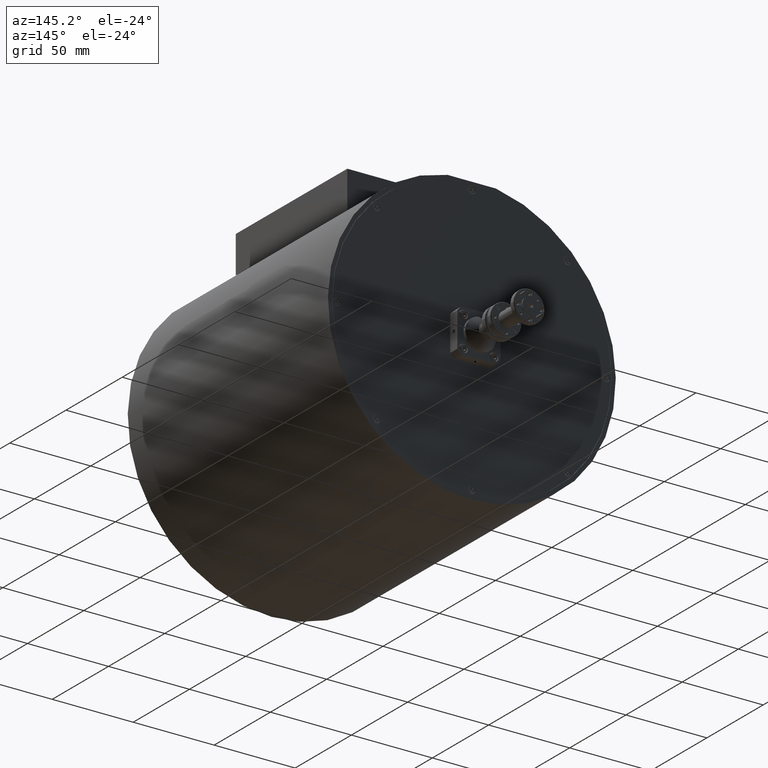
[diagram: clean part render]
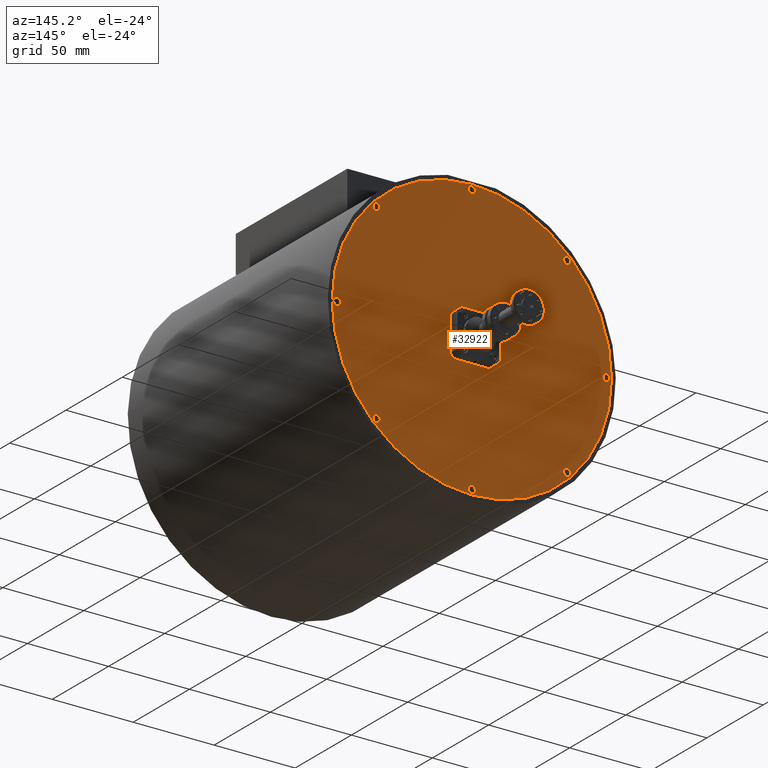
[diagram: same view with one face highlighted and labeled with its STEP entity id]
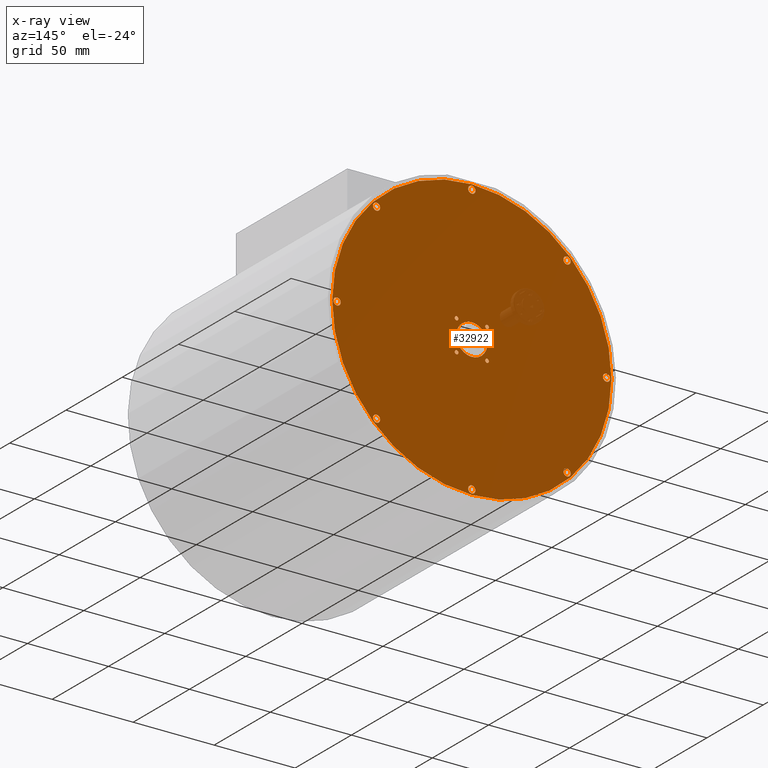
[diagram: x-ray of the same camera — body ghosted, the highlighted face saturated]
A machine part, auxiliary view. The second image highlights one B-rep face of the part: STEP entity #32922.
The next image is the same camera in x-ray: the body ghosted, the highlighted face saturated — about 2% of this face is hidden behind the body in this view.
In plain terms, the highlighted planar face has unit normal (0, -1, 0).
Its self-contained STEP definition (entity closure, byte-faithful):
#92 = EDGE_CURVE ( 'NONE', #32298, #22363, #33457, .T. ) ;
#396 = EDGE_LOOP ( 'NONE', ( #39089, #36106 ) ) ;
#530 = VERTEX_POINT ( 'NONE', #22983 ) ;
#571 = CARTESIAN_POINT ( 'NONE',  ( 1.766110170381784084, 4.544377155374180965, 0.7368484988796818458 ) ) ;
#746 = CIRCLE ( 'NONE', #27181, 0.08750000000000000833 ) ;
#836 = ORIENTED_EDGE ( 'NONE', *, *, #27772, .F. ) ;
#848 = CIRCLE ( 'NONE', #27978, 0.04449999999999997014 ) ;
#864 = ORIENTED_EDGE ( 'NONE', *, *, #34835, .F. ) ;
#1062 = EDGE_CURVE ( 'NONE', #41941, #23240, #19148, .T. ) ;
#1152 = AXIS2_PLACEMENT_3D ( 'NONE', #16897, #29875, #19798 ) ;
#1375 = EDGE_CURVE ( 'NONE', #12288, #530, #19879, .T. ) ;
#1392 = DIRECTION ( 'NONE',  ( 1.432160885642243375E-17, -1.000000000000000000, 5.753011097043310600E-17 ) ) ;
#1716 = ORIENTED_EDGE ( 'NONE', *, *, #40289, .F. ) ;
#1743 = FACE_BOUND ( 'NONE', #37231, .T. ) ;
#1960 = FACE_BOUND ( 'NONE', #33060, .T. ) ;
#2067 = CIRCLE ( 'NONE', #35623, 0.08750000000000011935 ) ;
#2194 = FACE_BOUND ( 'NONE', #23297, .T. ) ;
#2312 = VERTEX_POINT ( 'NONE', #12146 ) ;
#2569 = DIRECTION ( 'NONE',  ( 0.7071067811865475727, 0.0000000000000000000, -0.7071067811865475727 ) ) ;
#2608 = DIRECTION ( 'NONE',  ( 0.7071067811865491270, 0.0000000000000000000, -0.7071067811865460184 ) ) ;
#2610 = AXIS2_PLACEMENT_3D ( 'NONE', #41731, #21604, #4182 ) ;
#2709 = CARTESIAN_POINT ( 'NONE',  ( 0.7450130354139049560, 4.544377155374180965, -1.517054366152438716 ) ) ;
#2897 = EDGE_CURVE ( 'NONE', #19236, #42181, #8564, .T. ) ;
#2951 = AXIS2_PLACEMENT_3D ( 'NONE', #6774, #6996, #34037 ) ;
#3060 = CARTESIAN_POINT ( 'NONE',  ( -1.570761672972039280, 4.544377155374180965, -2.476279657766495834 ) ) ;
#3275 = ORIENTED_EDGE ( 'NONE', *, *, #41382, .F. ) ;
#3349 = ORIENTED_EDGE ( 'NONE', *, *, #92, .T. ) ;
#3637 = EDGE_CURVE ( 'NONE', #10530, #17960, #39335, .T. ) ;
#3735 = ORIENTED_EDGE ( 'NONE', *, *, #22485, .F. ) ;
#3861 = CARTESIAN_POINT ( 'NONE',  ( -1.941992733094976886, 4.544377155374180965, 1.169951402356441905 ) ) ;
#4150 = CIRCLE ( 'NONE', #5582, 0.08750000000000021649 ) ;
#4182 = DIRECTION ( 'NONE',  ( 0.7071067811865483499, 0.0000000000000000000, -0.7071067811865467956 ) ) ;
#4295 = DIRECTION ( 'NONE',  ( -0.7071067811865479058, 0.0000000000000000000, 0.7071067811865472397 ) ) ;
#4600 = AXIS2_PLACEMENT_3D ( 'NONE', #5323, #29020, #12008 ) ;
#5019 = DIRECTION ( 'NONE',  ( -1.432160885642243375E-17, 1.000000000000000000, -5.753011097043310600E-17 ) ) ;
#5323 = CARTESIAN_POINT ( 'NONE',  ( -1.941992733094976886, 4.544377155374180965, 1.169951402356441905 ) ) ;
#5582 = AXIS2_PLACEMENT_3D ( 'NONE', #28450, #8091, #18374 ) ;
#5771 = ORIENTED_EDGE ( 'NONE', *, *, #38360, .F. ) ;
#5858 = CARTESIAN_POINT ( 'NONE',  ( -1.199530612849101674, 4.544377155374180965, 0.4274892821105671370 ) ) ;
#5870 = AXIS2_PLACEMENT_3D ( 'NONE', #10584, #11228, #24225 ) ;
#5941 = CARTESIAN_POINT ( 'NONE',  ( -3.886536381357983405, 4.544377155374180965, 3.114495050619447536 ) ) ;
#5945 = DIRECTION ( 'NONE',  ( -1.432160885642243375E-17, 1.000000000000000000, -5.753011097043310600E-17 ) ) ;
#6259 = VERTEX_POINT ( 'NONE', #10259 ) ;
#6684 = CARTESIAN_POINT ( 'NONE',  ( -1.973458984857778153, 4.544377155374180965, 1.201417654119243394 ) ) ;
#6774 = CARTESIAN_POINT ( 'NONE',  ( -3.886536381357982073, 4.544377155374180965, -1.517054366152439160 ) ) ;
#6805 = CARTESIAN_POINT ( 'NONE',  ( -1.168064361086300629, 4.544377155374180965, 1.138485150593640638 ) ) ;
#6843 = DIRECTION ( 'NONE',  ( -1.432160885642243375E-17, 1.000000000000000000, -5.753011097043310600E-17 ) ) ;
#6865 = AXIS2_PLACEMENT_3D ( 'NONE', #16015, #12643, #26324 ) ;
#6996 = DIRECTION ( 'NONE',  ( -1.432160885642243375E-17, 1.000000000000000000, -5.753011097043310600E-17 ) ) ;
#7031 = AXIS2_PLACEMENT_3D ( 'NONE', #7562, #17862, #37753 ) ;
#7085 = AXIS2_PLACEMENT_3D ( 'NONE', #13399, #27715, #17218 ) ;
#7264 = CARTESIAN_POINT ( 'NONE',  ( -1.570761672972039280, 4.544377155374180965, -2.476279657766495834 ) ) ;
#7373 = EDGE_CURVE ( 'NONE', #22273, #32076, #42065, .T. ) ;
#7562 = CARTESIAN_POINT ( 'NONE',  ( 0.7450130354139038458, 4.544377155374180965, 3.114495050619447980 ) ) ;
#7645 = CARTESIAN_POINT ( 'NONE',  ( 0.8068848787677267431, 4.544377155374180965, 3.052623207265625194 ) ) ;
#7720 = CARTESIAN_POINT ( 'NONE',  ( -3.824664538004160619, 4.544377155374180965, 3.052623207265624750 ) ) ;
#8013 = ORIENTED_EDGE ( 'NONE', *, *, #13438, .F. ) ;
#8091 = DIRECTION ( 'NONE',  ( -1.432160885642243375E-17, 1.000000000000000000, -5.753011097043310600E-17 ) ) ;
#8430 = CIRCLE ( 'NONE', #33319, 0.04449999999999997014 ) ;
#8436 = CIRCLE ( 'NONE', #7031, 0.08749999999999991118 ) ;
#8451 = FACE_BOUND ( 'NONE', #24639, .T. ) ;
#8564 = CIRCLE ( 'NONE', #27881, 0.08749999999999991118 ) ;
#8684 = FACE_BOUND ( 'NONE', #396, .T. ) ;
#9285 = DIRECTION ( 'NONE',  ( -0.7071067811865477948, 0.0000000000000000000, 0.7071067811865473507 ) ) ;
#9343 = EDGE_CURVE ( 'NONE', #11341, #11160, #33639, .T. ) ;
#9637 = ORIENTED_EDGE ( 'NONE', *, *, #7373, .T. ) ;
#9687 = AXIS2_PLACEMENT_3D ( 'NONE', #3060, #6843, #2608 ) ;
#9796 = EDGE_CURVE ( 'NONE', #18478, #40719, #8436, .T. ) ;
#9830 = CARTESIAN_POINT ( 'NONE',  ( -4.907633516325862644, 4.544377155374180965, 0.8605921855873270854 ) ) ;
#10259 = CARTESIAN_POINT ( 'NONE',  ( -1.230996864611903163, 4.544377155374180965, 0.4589555338733684597 ) ) ;
#10530 = VERTEX_POINT ( 'NONE', #27178 ) ;
#10584 = CARTESIAN_POINT ( 'NONE',  ( -4.845761672972040301, 4.544377155374180965, 0.7987203422335041880 ) ) ;
#10742 = EDGE_CURVE ( 'NONE', #530, #12288, #746, .T. ) ;
#11139 = DIRECTION ( 'NONE',  ( 0.7071067811865491270, 0.0000000000000000000, -0.7071067811865460184 ) ) ;
#11160 = VERTEX_POINT ( 'NONE', #16717 ) ;
#11228 = DIRECTION ( 'NONE',  ( -1.432160885642243375E-17, 1.000000000000000000, -5.753011097043310600E-17 ) ) ;
#11341 = VERTEX_POINT ( 'NONE', #27900 ) ;
#11375 = EDGE_CURVE ( 'NONE', #40719, #18478, #34730, .T. ) ;
#11442 = EDGE_LOOP ( 'NONE', ( #836, #38924 ) ) ;
#11698 = EDGE_CURVE ( 'NONE', #35911, #21248, #33985, .T. ) ;
#11864 = CARTESIAN_POINT ( 'NONE',  ( -4.783889829618217071, 4.544377155374180965, 0.7368484988796812907 ) ) ;
#12008 = DIRECTION ( 'NONE',  ( -0.7071067811865475727, 0.0000000000000000000, 0.7071067811865475727 ) ) ;
#12146 = CARTESIAN_POINT ( 'NONE',  ( -1.910526481332175397, 4.544377155374180965, 1.138485150593640638 ) ) ;
#12204 = CARTESIAN_POINT ( 'NONE',  ( -4.845761672972040301, 4.544377155374180965, 0.7987203422335041880 ) ) ;
#12288 = VERTEX_POINT ( 'NONE', #36017 ) ;
#12437 = EDGE_CURVE ( 'NONE', #6259, #39704, #38552, .T. ) ;
#12643 = DIRECTION ( 'NONE',  ( 1.432160885642243375E-17, -1.000000000000000000, 5.753011097043310600E-17 ) ) ;
#12678 = ORIENTED_EDGE ( 'NONE', *, *, #27865, .T. ) ;
#12727 = AXIS2_PLACEMENT_3D ( 'NONE', #28676, #1392, #4295 ) ;
#13195 = DIRECTION ( 'NONE',  ( 1.432160885642243375E-17, -1.000000000000000000, 5.753011097043310600E-17 ) ) ;
#13327 = AXIS2_PLACEMENT_3D ( 'NONE', #2709, #15903, #29982 ) ;
#13399 = CARTESIAN_POINT ( 'NONE',  ( -1.199530612849101896, 4.544377155374180965, 1.169951402356441905 ) ) ;
#13438 = EDGE_CURVE ( 'NONE', #11160, #11341, #19895, .T. ) ;
#13703 = CIRCLE ( 'NONE', #22990, 0.3775000000000002243 ) ;
#13749 = DIRECTION ( 'NONE',  ( -1.432160885642243375E-17, 1.000000000000000000, -5.753011097043310600E-17 ) ) ;
#14713 = CIRCLE ( 'NONE', #6865, 0.04450000000000006034 ) ;
#14887 = AXIS2_PLACEMENT_3D ( 'NONE', #23036, #40225, #19898 ) ;
#14902 = CARTESIAN_POINT ( 'NONE',  ( -1.910526481332175397, 4.544377155374180965, 0.3960230303477657032 ) ) ;
#14962 = CARTESIAN_POINT ( 'NONE',  ( -1.837694482869961288, 4.544377155374180965, 1.065653152131426085 ) ) ;
#15156 = CIRCLE ( 'NONE', #5870, 0.08749999999999991118 ) ;
#15174 = FACE_BOUND ( 'NONE', #11442, .T. ) ;
#15429 = CIRCLE ( 'NONE', #40401, 0.08749999999999981404 ) ;
#15433 = VERTEX_POINT ( 'NONE', #18734 ) ;
#15538 = CARTESIAN_POINT ( 'NONE',  ( -1.973458984857778153, 4.544377155374180965, 0.4589555338733684042 ) ) ;
#15599 = FACE_OUTER_BOUND ( 'NONE', #15714, .T. ) ;
#15658 = ORIENTED_EDGE ( 'NONE', *, *, #3637, .F. ) ;
#15714 = EDGE_LOOP ( 'NONE', ( #8013, #35770 ) ) ;
#15747 = VERTEX_POINT ( 'NONE', #7720 ) ;
#15903 = DIRECTION ( 'NONE',  ( -1.432160885642243375E-17, 1.000000000000000000, -5.753011097043310600E-17 ) ) ;
#16015 = CARTESIAN_POINT ( 'NONE',  ( -1.199530612849101674, 4.544377155374180965, 0.4274892821105671370 ) ) ;
#16145 = CIRCLE ( 'NONE', #9687, 0.08750000000000000833 ) ;
#16207 = CARTESIAN_POINT ( 'NONE',  ( 1.704238327027961075, 4.544377155374180965, 0.7987203422335047431 ) ) ;
#16359 = CARTESIAN_POINT ( 'NONE',  ( 0.6831411920600818366, 4.544377155374180965, -1.455182522798615485 ) ) ;
#16522 = ORIENTED_EDGE ( 'NONE', *, *, #24804, .T. ) ;
#16616 = ORIENTED_EDGE ( 'NONE', *, *, #12437, .T. ) ;
#16717 = CARTESIAN_POINT ( 'NONE',  ( 0.8298658491562903583, 4.544377155374180965, -1.601907179894824118 ) ) ;
#16836 = ORIENTED_EDGE ( 'NONE', *, *, #9796, .F. ) ;
#16897 = CARTESIAN_POINT ( 'NONE',  ( -3.886536381357983405, 4.544377155374180965, 3.114495050619447536 ) ) ;
#17121 = EDGE_CURVE ( 'NONE', #42651, #15747, #15429, .T. ) ;
#17214 = CARTESIAN_POINT ( 'NONE',  ( -3.948408224711804859, 4.544377155374180965, -1.455182522798616374 ) ) ;
#17218 = DIRECTION ( 'NONE',  ( -0.7071067811865490160, 0.0000000000000000000, 0.7071067811865461294 ) ) ;
#17417 = CARTESIAN_POINT ( 'NONE',  ( 1.704238327027961075, 4.544377155374180965, 0.7987203422335047431 ) ) ;
#17862 = DIRECTION ( 'NONE',  ( -1.432160885642243375E-17, 1.000000000000000000, -5.753011097043310600E-17 ) ) ;
#17960 = VERTEX_POINT ( 'NONE', #17214 ) ;
#18374 = DIRECTION ( 'NONE',  ( 0.7071067811865474617, 0.0000000000000000000, -0.7071067811865474617 ) ) ;
#18478 = VERTEX_POINT ( 'NONE', #18645 ) ;
#18645 = CARTESIAN_POINT ( 'NONE',  ( 0.6831411920600808374, 4.544377155374180965, 3.176366893973270766 ) ) ;
#18734 = CARTESIAN_POINT ( 'NONE',  ( 0.8068848787677279644, 4.544377155374180965, -1.578926209506261724 ) ) ;
#18736 = FACE_BOUND ( 'NONE', #41333, .T. ) ;
#19148 = CIRCLE ( 'NONE', #12727, 0.3775000000000002243 ) ;
#19236 = VERTEX_POINT ( 'NONE', #9830 ) ;
#19798 = DIRECTION ( 'NONE',  ( 0.7071067811865475727, 0.0000000000000000000, -0.7071067811865475727 ) ) ;
#19879 = CIRCLE ( 'NONE', #24890, 0.08750000000000000833 ) ;
#19895 = CIRCLE ( 'NONE', #40601, 3.395000000000000462 ) ;
#19898 = DIRECTION ( 'NONE',  ( -0.7071067811865475727, 0.0000000000000000000, 0.7071067811865475727 ) ) ;
#20013 = ORIENTED_EDGE ( 'NONE', *, *, #26750, .T. ) ;
#21066 = DIRECTION ( 'NONE',  ( 1.432160885642243375E-17, -1.000000000000000000, 5.753011097043310600E-17 ) ) ;
#21248 = VERTEX_POINT ( 'NONE', #32463 ) ;
#21469 = ORIENTED_EDGE ( 'NONE', *, *, #10742, .F. ) ;
#21559 = DIRECTION ( 'NONE',  ( 0.7071067811865491270, 0.0000000000000000000, -0.7071067811865460184 ) ) ;
#21604 = DIRECTION ( 'NONE',  ( -1.432160885642243375E-17, 1.000000000000000000, -5.753011097043310600E-17 ) ) ;
#21716 = CARTESIAN_POINT ( 'NONE',  ( -1.303828863074117272, 4.544377155374180965, 0.5317875323355829575 ) ) ;
#21830 = DIRECTION ( 'NONE',  ( 0.7071067811865467956, 0.0000000000000000000, -0.7071067811865483499 ) ) ;
#21855 = FACE_BOUND ( 'NONE', #34709, .T. ) ;
#21871 = EDGE_LOOP ( 'NONE', ( #864, #32930 ) ) ;
#22238 = DIRECTION ( 'NONE',  ( -0.7071067811865477948, 0.0000000000000000000, 0.7071067811865473507 ) ) ;
#22273 = VERTEX_POINT ( 'NONE', #6805 ) ;
#22300 = CIRCLE ( 'NONE', #42914, 0.04450000000000006034 ) ;
#22363 = VERTEX_POINT ( 'NONE', #14902 ) ;
#22422 = CARTESIAN_POINT ( 'NONE',  ( -1.570761672972039280, 4.544377155374180965, 4.073720342233505320 ) ) ;
#22441 = CARTESIAN_POINT ( 'NONE',  ( -1.570761672972039280, 4.544377155374180965, 0.7987203422335045211 ) ) ;
#22485 = EDGE_CURVE ( 'NONE', #41284, #40191, #2067, .T. ) ;
#22501 = PLANE ( 'NONE',  #41713 ) ;
#22604 = DIRECTION ( 'NONE',  ( -0.7071067811865490160, 0.0000000000000000000, 0.7071067811865461294 ) ) ;
#22983 = CARTESIAN_POINT ( 'NONE',  ( -1.508889829618216272, 4.544377155374180965, 4.011848498879682090 ) ) ;
#22990 = AXIS2_PLACEMENT_3D ( 'NONE', #25923, #42252, #39521 ) ;
#22991 = CARTESIAN_POINT ( 'NONE',  ( -3.948408224711806191, 4.544377155374180965, 3.176366893973270322 ) ) ;
#23036 = CARTESIAN_POINT ( 'NONE',  ( -1.941992733094976886, 4.544377155374180965, 0.4274892821105670815 ) ) ;
#23240 = VERTEX_POINT ( 'NONE', #14962 ) ;
#23297 = EDGE_LOOP ( 'NONE', ( #28765, #20013 ) ) ;
#23594 = CARTESIAN_POINT ( 'NONE',  ( -3.886536381357982073, 4.544377155374180965, -1.517054366152439160 ) ) ;
#24225 = DIRECTION ( 'NONE',  ( 0.7071067811865467956, 0.0000000000000000000, -0.7071067811865483499 ) ) ;
#24639 = EDGE_LOOP ( 'NONE', ( #32595, #16836 ) ) ;
#24804 = EDGE_CURVE ( 'NONE', #22363, #32298, #848, .T. ) ;
#24890 = AXIS2_PLACEMENT_3D ( 'NONE', #40232, #31061, #11139 ) ;
#25003 = EDGE_LOOP ( 'NONE', ( #41603, #35001 ) ) ;
#25264 = EDGE_LOOP ( 'NONE', ( #21469, #25391 ) ) ;
#25359 = DIRECTION ( 'NONE',  ( 0.7071067811865475727, 0.0000000000000000000, -0.7071067811865475727 ) ) ;
#25391 = ORIENTED_EDGE ( 'NONE', *, *, #1375, .F. ) ;
#25643 = DIRECTION ( 'NONE',  ( -1.432160885642243375E-17, 1.000000000000000000, -5.753011097043310600E-17 ) ) ;
#25663 = EDGE_CURVE ( 'NONE', #15433, #40954, #35474, .T. ) ;
#25891 = DIRECTION ( 'NONE',  ( 1.629970417988057567E-17, -1.000000000000000000, 5.555201564697497025E-17 ) ) ;
#25923 = CARTESIAN_POINT ( 'NONE',  ( -1.570761672972039280, 4.544377155374180965, 0.7987203422335045211 ) ) ;
#26324 = DIRECTION ( 'NONE',  ( -0.7071067811865490160, 0.0000000000000000000, 0.7071067811865461294 ) ) ;
#26750 = EDGE_CURVE ( 'NONE', #2312, #32714, #8430, .T. ) ;
#27142 = CARTESIAN_POINT ( 'NONE',  ( -1.199530612849101896, 4.544377155374180965, 1.169951402356441905 ) ) ;
#27178 = CARTESIAN_POINT ( 'NONE',  ( -3.824664538004159287, 4.544377155374180965, -1.578926209506261946 ) ) ;
#27181 = AXIS2_PLACEMENT_3D ( 'NONE', #22422, #5019, #36062 ) ;
#27418 = CIRCLE ( 'NONE', #4600, 0.04449999999999997014 ) ;
#27576 = CIRCLE ( 'NONE', #1152, 0.08749999999999981404 ) ;
#27715 = DIRECTION ( 'NONE',  ( 1.432160885642243375E-17, -1.000000000000000000, 5.753011097043310600E-17 ) ) ;
#27772 = EDGE_CURVE ( 'NONE', #15747, #42651, #27576, .T. ) ;
#27809 = EDGE_LOOP ( 'NONE', ( #31490, #9637 ) ) ;
#27865 = EDGE_CURVE ( 'NONE', #39704, #6259, #14713, .T. ) ;
#27881 = AXIS2_PLACEMENT_3D ( 'NONE', #12204, #25643, #21830 ) ;
#27900 = CARTESIAN_POINT ( 'NONE',  ( -3.971389195100369918, 4.544377155374180965, 3.199347864361833160 ) ) ;
#27978 = AXIS2_PLACEMENT_3D ( 'NONE', #35505, #38423, #41354 ) ;
#28450 = CARTESIAN_POINT ( 'NONE',  ( 0.7450130354139049560, 4.544377155374180965, -1.517054366152438716 ) ) ;
#28595 = FACE_BOUND ( 'NONE', #27809, .T. ) ;
#28676 = CARTESIAN_POINT ( 'NONE',  ( -1.570761672972039280, 4.544377155374180965, 0.7987203422335045211 ) ) ;
#28705 = CIRCLE ( 'NONE', #35826, 0.08750000000000011935 ) ;
#28765 = ORIENTED_EDGE ( 'NONE', *, *, #32879, .T. ) ;
#29020 = DIRECTION ( 'NONE',  ( 1.432160885642243375E-17, -1.000000000000000000, 5.753011097043310600E-17 ) ) ;
#29666 = EDGE_CURVE ( 'NONE', #42181, #19236, #15156, .T. ) ;
#29698 = CARTESIAN_POINT ( 'NONE',  ( -1.168064361086300407, 4.544377155374180965, 0.3960230303477657587 ) ) ;
#29875 = DIRECTION ( 'NONE',  ( -1.432160885642243375E-17, 1.000000000000000000, -5.753011097043310600E-17 ) ) ;
#29982 = DIRECTION ( 'NONE',  ( 0.7071067811865474617, 0.0000000000000000000, -0.7071067811865474617 ) ) ;
#30016 = AXIS2_PLACEMENT_3D ( 'NONE', #5858, #13195, #22604 ) ;
#30123 = EDGE_CURVE ( 'NONE', #23240, #41941, #13703, .T. ) ;
#30463 = DIRECTION ( 'NONE',  ( -0.7071067811865490160, 0.0000000000000000000, 0.7071067811865461294 ) ) ;
#31061 = DIRECTION ( 'NONE',  ( -1.432160885642243375E-17, 1.000000000000000000, -5.753011097043310600E-17 ) ) ;
#31490 = ORIENTED_EDGE ( 'NONE', *, *, #40570, .T. ) ;
#31918 = FACE_BOUND ( 'NONE', #25264, .T. ) ;
#32076 = VERTEX_POINT ( 'NONE', #38326 ) ;
#32155 = FACE_BOUND ( 'NONE', #25003, .T. ) ;
#32298 = VERTEX_POINT ( 'NONE', #15538 ) ;
#32463 = CARTESIAN_POINT ( 'NONE',  ( -1.508889829618216272, 4.544377155374180965, -2.538151501120318621 ) ) ;
#32595 = ORIENTED_EDGE ( 'NONE', *, *, #11375, .F. ) ;
#32714 = VERTEX_POINT ( 'NONE', #6684 ) ;
#32879 = EDGE_CURVE ( 'NONE', #32714, #2312, #27418, .T. ) ;
#32922 = ADVANCED_FACE ( 'NONE', ( #18736, #28595, #1743, #2194, #8684, #21855, #39050, #1960, #39698, #8451, #31918, #15174, #15599, #32155 ), #22501, .F. ) ;
#32930 = ORIENTED_EDGE ( 'NONE', *, *, #11698, .F. ) ;
#33011 = CIRCLE ( 'NONE', #41548, 0.08749999999999981404 ) ;
#33060 = EDGE_LOOP ( 'NONE', ( #40034, #5771 ) ) ;
#33201 = CARTESIAN_POINT ( 'NONE',  ( -1.570761672972039280, 4.544377155374180965, 0.7987203422335045211 ) ) ;
#33319 = AXIS2_PLACEMENT_3D ( 'NONE', #3861, #21066, #34921 ) ;
#33457 = CIRCLE ( 'NONE', #14887, 0.04449999999999997014 ) ;
#33585 = EDGE_LOOP ( 'NONE', ( #3275, #3735 ) ) ;
#33639 = CIRCLE ( 'NONE', #39333, 3.395000000000000462 ) ;
#33985 = CIRCLE ( 'NONE', #35420, 0.08750000000000000833 ) ;
#34037 = DIRECTION ( 'NONE',  ( 0.7071067811865475727, 0.0000000000000000000, -0.7071067811865475727 ) ) ;
#34181 = DIRECTION ( 'NONE',  ( 0.7071067811865482389, 0.0000000000000000000, -0.7071067811865466846 ) ) ;
#34709 = EDGE_LOOP ( 'NONE', ( #15658, #1716 ) ) ;
#34730 = CIRCLE ( 'NONE', #2610, 0.08749999999999991118 ) ;
#34835 = EDGE_CURVE ( 'NONE', #21248, #35911, #16145, .T. ) ;
#34921 = DIRECTION ( 'NONE',  ( -0.7071067811865475727, 0.0000000000000000000, 0.7071067811865475727 ) ) ;
#35001 = ORIENTED_EDGE ( 'NONE', *, *, #30123, .T. ) ;
#35420 = AXIS2_PLACEMENT_3D ( 'NONE', #7264, #13749, #21559 ) ;
#35474 = CIRCLE ( 'NONE', #13327, 0.08750000000000021649 ) ;
#35505 = CARTESIAN_POINT ( 'NONE',  ( -1.941992733094976886, 4.544377155374180965, 0.4274892821105670815 ) ) ;
#35623 = AXIS2_PLACEMENT_3D ( 'NONE', #16207, #5945, #36983 ) ;
#35770 = ORIENTED_EDGE ( 'NONE', *, *, #9343, .F. ) ;
#35826 = AXIS2_PLACEMENT_3D ( 'NONE', #17417, #41769, #34181 ) ;
#35911 = VERTEX_POINT ( 'NONE', #42474 ) ;
#36017 = CARTESIAN_POINT ( 'NONE',  ( -1.632633516325862288, 4.544377155374180965, 4.135592185587327663 ) ) ;
#36062 = DIRECTION ( 'NONE',  ( 0.7071067811865491270, 0.0000000000000000000, -0.7071067811865460184 ) ) ;
#36081 = DIRECTION ( 'NONE',  ( 1.432160885642243375E-17, -1.000000000000000000, 5.753011097043310600E-17 ) ) ;
#36106 = ORIENTED_EDGE ( 'NONE', *, *, #2897, .F. ) ;
#36560 = DIRECTION ( 'NONE',  ( 1.432160885642243375E-17, -1.000000000000000000, 5.753011097043310600E-17 ) ) ;
#36983 = DIRECTION ( 'NONE',  ( 0.7071067811865482389, 0.0000000000000000000, -0.7071067811865466846 ) ) ;
#37227 = DIRECTION ( 'NONE',  ( -1.432160885642243375E-17, 1.000000000000000000, -5.753011097043310600E-17 ) ) ;
#37231 = EDGE_LOOP ( 'NONE', ( #16616, #12678 ) ) ;
#37753 = DIRECTION ( 'NONE',  ( 0.7071067811865483499, 0.0000000000000000000, -0.7071067811865467956 ) ) ;
#38326 = CARTESIAN_POINT ( 'NONE',  ( -1.230996864611903385, 4.544377155374180965, 1.201417654119243394 ) ) ;
#38360 = EDGE_CURVE ( 'NONE', #40954, #15433, #4150, .T. ) ;
#38423 = DIRECTION ( 'NONE',  ( 1.432160885642243375E-17, -1.000000000000000000, 5.753011097043310600E-17 ) ) ;
#38536 = CARTESIAN_POINT ( 'NONE',  ( 1.642366483674138067, 4.544377155374180965, 0.8605921855873276405 ) ) ;
#38552 = CIRCLE ( 'NONE', #30016, 0.04450000000000006034 ) ;
#38924 = ORIENTED_EDGE ( 'NONE', *, *, #17121, .F. ) ;
#39050 = FACE_BOUND ( 'NONE', #21871, .T. ) ;
#39089 = ORIENTED_EDGE ( 'NONE', *, *, #29666, .F. ) ;
#39333 = AXIS2_PLACEMENT_3D ( 'NONE', #33201, #36560, #9285 ) ;
#39335 = CIRCLE ( 'NONE', #2951, 0.08749999999999981404 ) ;
#39495 = DIRECTION ( 'NONE',  ( -0.7071067811865476838, 2.775557561562890735E-17, 0.7071067811865473507 ) ) ;
#39521 = DIRECTION ( 'NONE',  ( -0.7071067811865479058, 0.0000000000000000000, 0.7071067811865472397 ) ) ;
#39698 = FACE_BOUND ( 'NONE', #33585, .T. ) ;
#39704 = VERTEX_POINT ( 'NONE', #29698 ) ;
#40034 = ORIENTED_EDGE ( 'NONE', *, *, #25663, .F. ) ;
#40191 = VERTEX_POINT ( 'NONE', #571 ) ;
#40225 = DIRECTION ( 'NONE',  ( 1.432160885642243375E-17, -1.000000000000000000, 5.753011097043310600E-17 ) ) ;
#40232 = CARTESIAN_POINT ( 'NONE',  ( -1.570761672972039280, 4.544377155374180965, 4.073720342233505320 ) ) ;
#40289 = EDGE_CURVE ( 'NONE', #17960, #10530, #33011, .T. ) ;
#40401 = AXIS2_PLACEMENT_3D ( 'NONE', #5941, #43909, #2569 ) ;
#40570 = EDGE_CURVE ( 'NONE', #32076, #22273, #22300, .T. ) ;
#40601 = AXIS2_PLACEMENT_3D ( 'NONE', #22441, #36081, #22238 ) ;
#40719 = VERTEX_POINT ( 'NONE', #7645 ) ;
#40954 = VERTEX_POINT ( 'NONE', #16359 ) ;
#41284 = VERTEX_POINT ( 'NONE', #38536 ) ;
#41333 = EDGE_LOOP ( 'NONE', ( #3349, #16522 ) ) ;
#41354 = DIRECTION ( 'NONE',  ( -0.7071067811865475727, 0.0000000000000000000, 0.7071067811865475727 ) ) ;
#41382 = EDGE_CURVE ( 'NONE', #40191, #41284, #28705, .T. ) ;
#41548 = AXIS2_PLACEMENT_3D ( 'NONE', #23594, #37227, #25359 ) ;
#41603 = ORIENTED_EDGE ( 'NONE', *, *, #1062, .T. ) ;
#41713 = AXIS2_PLACEMENT_3D ( 'NONE', #42870, #25891, #39495 ) ;
#41731 = CARTESIAN_POINT ( 'NONE',  ( 0.7450130354139038458, 4.544377155374180965, 3.114495050619447980 ) ) ;
#41769 = DIRECTION ( 'NONE',  ( -1.432160885642243375E-17, 1.000000000000000000, -5.753011097043310600E-17 ) ) ;
#41941 = VERTEX_POINT ( 'NONE', #21716 ) ;
#42065 = CIRCLE ( 'NONE', #7085, 0.04450000000000006034 ) ;
#42181 = VERTEX_POINT ( 'NONE', #11864 ) ;
#42252 = DIRECTION ( 'NONE',  ( 1.432160885642243375E-17, -1.000000000000000000, 5.753011097043310600E-17 ) ) ;
#42474 = CARTESIAN_POINT ( 'NONE',  ( -1.632633516325862288, 4.544377155374180965, -2.414407814412673048 ) ) ;
#42651 = VERTEX_POINT ( 'NONE', #22991 ) ;
#42870 = CARTESIAN_POINT ( 'NONE',  ( -1.570761672972039280, 4.544377155374180965, 0.7987203422335045211 ) ) ;
#42914 = AXIS2_PLACEMENT_3D ( 'NONE', #27142, #43889, #30463 ) ;
#43889 = DIRECTION ( 'NONE',  ( 1.432160885642243375E-17, -1.000000000000000000, 5.753011097043310600E-17 ) ) ;
#43909 = DIRECTION ( 'NONE',  ( -1.432160885642243375E-17, 1.000000000000000000, -5.753011097043310600E-17 ) ) ;